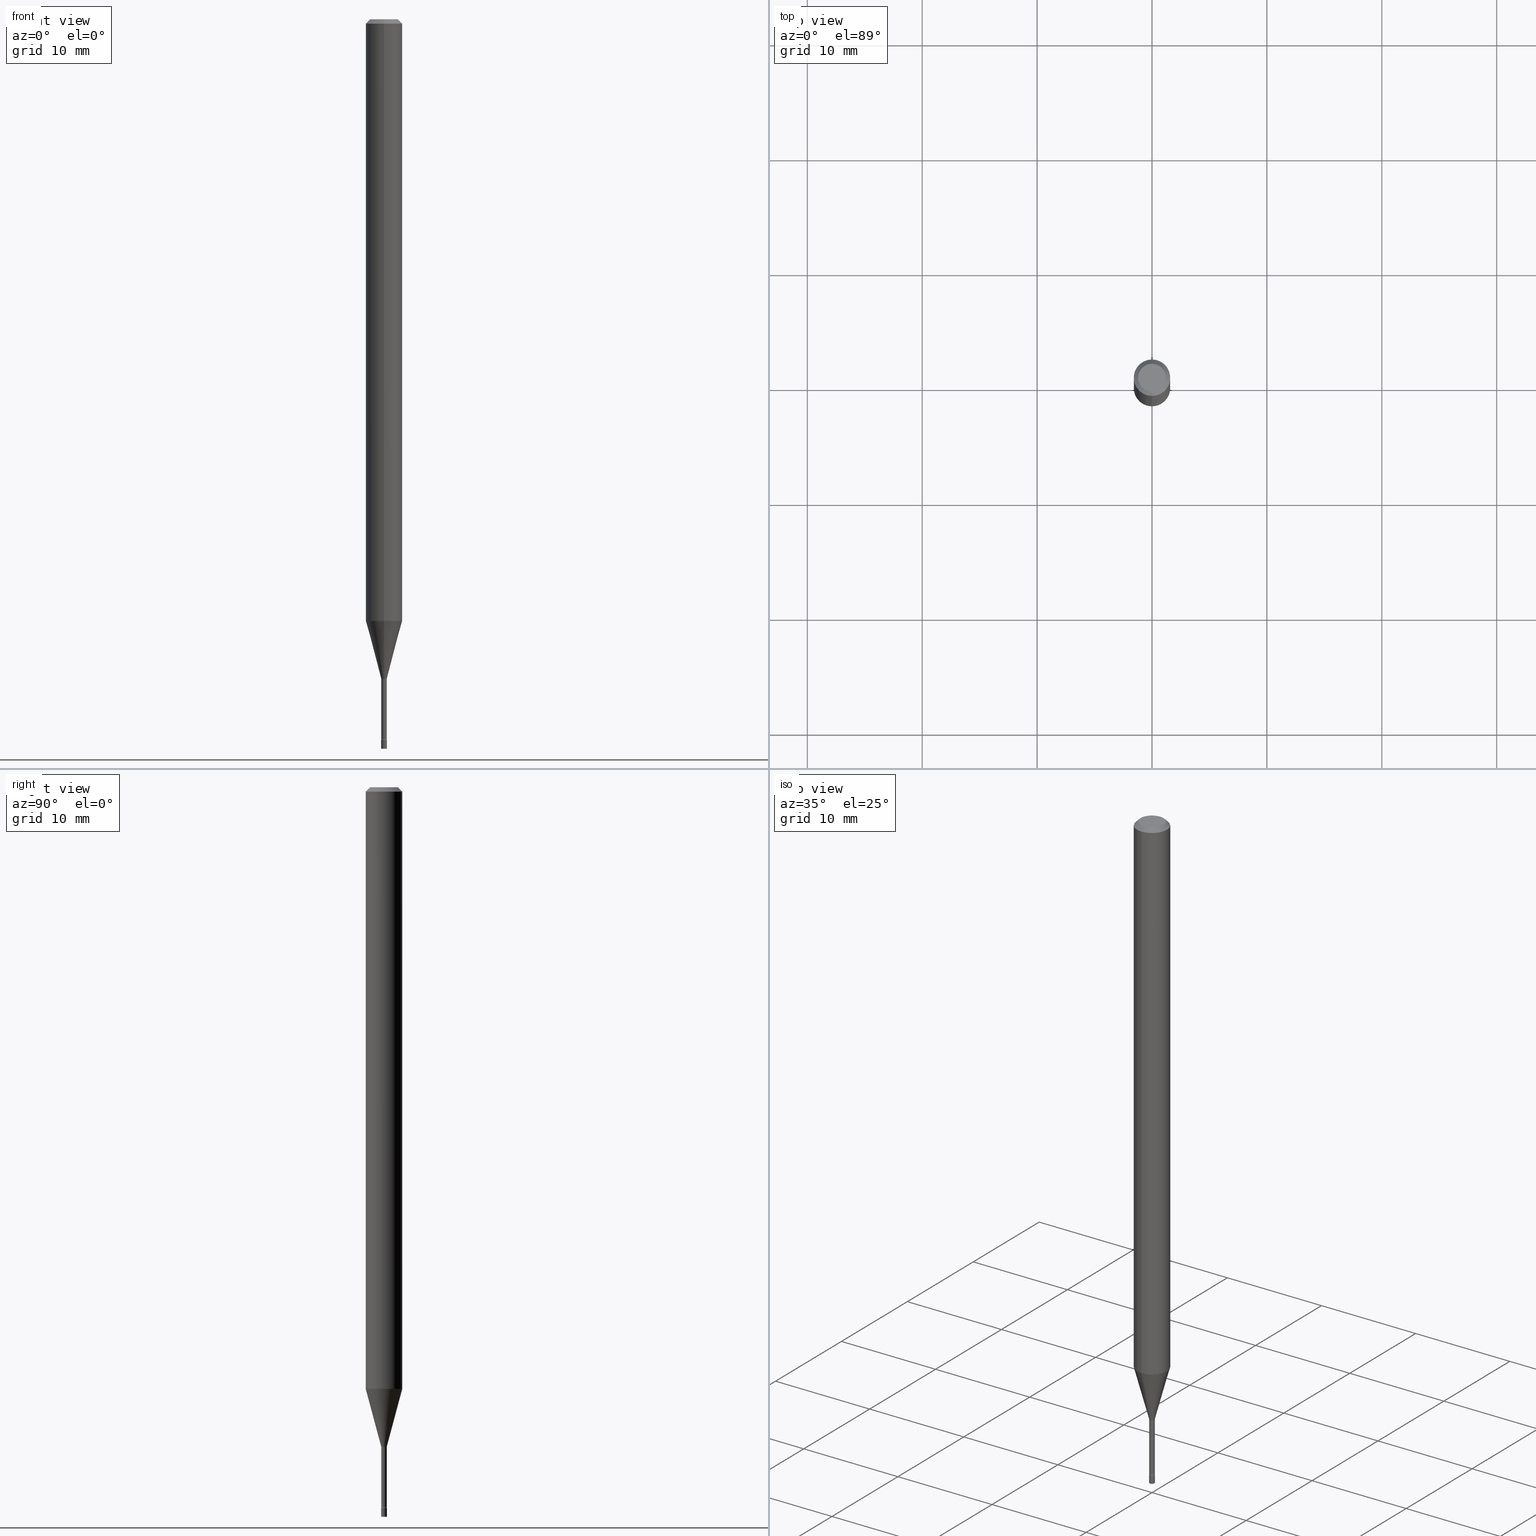
[diagram: canonical four-view strip — front | top / right | iso, engineering-drawing reading convention]
A machine part, canonical four-view strip (front | top / right | iso — engineering-drawing reading convention). The complete STEP part file that produces these views, byte-faithful:
ISO-10303-21;
HEADER;
FILE_DESCRIPTION (( 'STEP AP203' ),
    '1' );
FILE_NAME ('09609.STEP',
    '2024-03-08T23:56:01',
    ( '' ),
    ( '' ),
    'SwSTEP 2.0',
    'SolidWorks 2023',
    '' );
FILE_SCHEMA (( 'CONFIG_CONTROL_DESIGN' ));
ENDSEC;

DATA;
#1 = DIRECTION ( 'NONE',  ( -2.445536542724447659E-29, 3.491384336263527933E-15, 1.000000000000000000 ) ) ;
#2 = ORIENTED_EDGE ( 'NONE', *, *, #313, .T. ) ;
#3 = APPROVAL_STATUS ( 'not_yet_approved' ) ;
#4 = FACE_OUTER_BOUND ( 'NONE', #505, .T. ) ;
#5 = APPROVAL ( #76, 'UNSPECIFIED' ) ;
#6 = ORIENTED_EDGE ( 'NONE', *, *, #480, .F. ) ;
#7 = AXIS2_PLACEMENT_3D ( 'NONE', #10, #62, #307 ) ;
#8 = LINE ( 'NONE', #170, #298 ) ;
#9 = ORIENTED_EDGE ( 'NONE', *, *, #161, .T. ) ;
#10 = CARTESIAN_POINT ( 'NONE',  ( 6.113672015462842613E-29, -8.728703347107864943E-15, -2.500000000000000000 ) ) ;
#11 = DIRECTION ( 'NONE',  ( -6.982962677686265922E-15, -1.000000000000000000, 0.000000000000000000 ) ) ;
#12 = ORIENTED_EDGE ( 'NONE', *, *, #157, .T. ) ;
#13 = DIRECTION ( 'NONE',  ( -2.445536542724447659E-29, 3.491384336263527933E-15, 1.000000000000000000 ) ) ;
#14 = ORIENTED_EDGE ( 'NONE', *, *, #514, .F. ) ;
#15 = EDGE_CURVE ( 'NONE', #107, #69, #314, .T. ) ;
#16 = DIRECTION ( 'NONE',  ( -2.445536542724447659E-29, 3.491384336263527933E-15, 1.000000000000000000 ) ) ;
#17 = CLOSED_SHELL ( 'NONE', ( #516, #255, #425, #306, #452, #124, #61, #435, #205, #189, #315, #414, #40, #496 ) ) ;
#18 = DIRECTION ( 'NONE',  ( 1.000000000000000000, -6.982962677686235945E-15, 0.000000000000000000 ) ) ;
#19 = CARTESIAN_POINT ( 'NONE',  ( 7.105427357607040490E-17, 0.009999999999991376898, -2.470000000000000195 ) ) ;
#20 = AXIS2_PLACEMENT_3D ( 'NONE', #258, #303, #376 ) ;
#21 = APPROVAL_PERSON_ORGANIZATION ( #360, #310, #246 ) ;
#22 = DIRECTION ( 'NONE',  ( 1.000000000000000000, -6.982962677686235945E-15, 0.000000000000000000 ) ) ;
#23 = CARTESIAN_POINT ( 'NONE',  ( 6.040307951277287977E-29, -8.623958906942569995E-15, -2.470000000000000195 ) ) ;
#24 = VERTEX_POINT ( 'NONE', #19 ) ;
#25 = CARTESIAN_POINT ( 'NONE',  ( 6.030204007049943435E-29, -8.609055496358607345E-15, -2.465800000000000214 ) ) ;
#26 = ORIENTED_EDGE ( 'NONE', *, *, #192, .F. ) ;
#27 = EDGE_CURVE ( 'NONE', #415, #126, #54, .T. ) ;
#28 = EDGE_LOOP ( 'NONE', ( #349, #9, #293, #203 ) ) ;
#29 = CLOSED_SHELL ( 'NONE', ( #234, #375, #226, #421 ) ) ;
#30 = AXIS2_PLACEMENT_3D ( 'NONE', #482, #284, #88 ) ;
#31 = PERSON_AND_ORGANIZATION ( #304, #448 ) ;
#32 = PRODUCT_RELATED_PRODUCT_CATEGORY ( 'detail', '', ( #502 ) ) ;
#33 = COORDINATED_UNIVERSAL_TIME_OFFSET ( 5, 0, .BEHIND. ) ;
#34 = DIRECTION ( 'NONE',  ( -2.445536542724447659E-29, 3.491384336263527933E-15, 1.000000000000000000 ) ) ;
#35 = PERSON_AND_ORGANIZATION_ROLE ( 'creator' ) ;
#36 = DIRECTION ( 'NONE',  ( -6.982962677686265133E-15, -1.000000000000000000, 0.000000000000000000 ) ) ;
#37 = ADVANCED_BREP_SHAPE_REPRESENTATION ( '09609', ( #401, #45, #169 ), #109 ) ;
#38 = APPROVAL_DATE_TIME ( #225, #295 ) ;
#39 = DIRECTION ( 'NONE',  ( -6.982962677686266711E-15, -1.000000000000000000, 3.491384336263528328E-15 ) ) ;
#40 = ADVANCED_FACE ( 'NONE', ( #181 ), #387, .T. ) ;
#41 = DIRECTION ( 'NONE',  ( -1.000000000000000000, 6.982962677686265922E-15, -4.883557194083112901E-29 ) ) ;
#42 = CARTESIAN_POINT ( 'NONE',  ( 6.892264536879016655E-17, 0.009399999999991416957, -2.465800000000000214 ) ) ;
#43 = CIRCLE ( 'NONE', #113, 0.04749999999999999362 ) ;
#44 = CIRCLE ( 'NONE', #114, 0.009400000000000024655 ) ;
#45 = MANIFOLD_SOLID_BREP ( 'Body-Move/Copy2[2]', #17 ) ;
#46 = AXIS2_PLACEMENT_3D ( 'NONE', #419, #141, #417 ) ;
#47 = DIRECTION ( 'NONE',  ( 6.982962677686265922E-15, 1.000000000000000000, -3.483106191921935554E-15 ) ) ;
#48 = ORIENTED_EDGE ( 'NONE', *, *, #70, .T. ) ;
#49 = EDGE_CURVE ( 'NONE', #411, #89, #266, .T. ) ;
#50 = CARTESIAN_POINT ( 'NONE',  ( 0.000000000000000000, 0.000000000000000000, 0.000000000000000000 ) ) ;
#51 = ORIENTED_EDGE ( 'NONE', *, *, #70, .F. ) ;
#52 = CARTESIAN_POINT ( 'NONE',  ( 5.522247729972846962E-29, -7.883868790574208180E-15, -2.258092501787273498 ) ) ;
#53 = ORIENTED_EDGE ( 'NONE', *, *, #480, .T. ) ;
#54 = CIRCLE ( 'NONE', #388, 0.04749999999999999362 ) ;
#55 = CYLINDRICAL_SURFACE ( 'NONE', #180, 0.06250000000000000000 ) ;
#56 = CARTESIAN_POINT ( 'NONE',  ( -1.703842893354847853E-16, -0.02440000000000863700, -2.465800000000000214 ) ) ;
#57 = FACE_OUTER_BOUND ( 'NONE', #374, .T. ) ;
#58 = VERTEX_POINT ( 'NONE', #96 ) ;
#59 =( NAMED_UNIT ( * ) PLANE_ANGLE_UNIT ( ) SI_UNIT ( $, .RADIAN. ) );
#60 = DIRECTION ( 'NONE',  ( -2.445536542724447659E-29, 3.491384336263527933E-15, 1.000000000000000000 ) ) ;
#61 = ADVANCED_FACE ( 'NONE', ( #4 ), #361, .T. ) ;
#62 = DIRECTION ( 'NONE',  ( -2.445468806185136597E-29, 3.491481338843145583E-15, 1.000000000000000000 ) ) ;
#63 = DIRECTION ( 'NONE',  ( -4.851104656540964275E-15, -0.7071067811865500152, -0.7071067811865450192 ) ) ;
#64 = ORIENTED_EDGE ( 'NONE', *, *, #383, .T. ) ;
#65 = EDGE_CURVE ( 'NONE', #24, #185, #136, .T. ) ;
#66 = CARTESIAN_POINT ( 'NONE',  ( 5.531588783120004822E-29, -7.897642759363587821E-15, -2.261974787463811420 ) ) ;
#67 = DIRECTION ( 'NONE',  ( -6.982962677686266711E-15, -1.000000000000000000, 3.491384336263528328E-15 ) ) ;
#68 = COORDINATED_UNIVERSAL_TIME_OFFSET ( 5, 0, .BEHIND. ) ;
#69 = VERTEX_POINT ( 'NONE', #399 ) ;
#70 = EDGE_CURVE ( 'NONE', #126, #415, #43, .T. ) ;
#71 = AXIS2_PLACEMENT_3D ( 'NONE', #238, #41, #36 ) ;
#72 = LOCAL_TIME ( 18, 56, 1.000000000000000000, #33 ) ;
#73 = MECHANICAL_CONTEXT ( 'NONE', #353, 'mechanical' ) ;
#74 = DATE_TIME_ROLE ( 'creation_date' ) ;
#75 = FACE_OUTER_BOUND ( 'NONE', #174, .T. ) ;
#76 = APPROVAL_STATUS ( 'not_yet_approved' ) ;
#77 = DIRECTION ( 'NONE',  ( 1.839019923739601104E-15, 0.2588190451025250693, 0.9659258262890670910 ) ) ;
#78 = PRODUCT_DEFINITION_SHAPE ( 'NONE', 'NONE',  #333 ) ;
#79 = CONICAL_SURFACE ( 'NONE', #476, 0.06250000000000000000, 0.7853981633974483900 ) ;
#80 = VECTOR ( 'NONE', #382, 39.37007874015748143 ) ;
#81 = COORDINATED_UNIVERSAL_TIME_OFFSET ( 5, 0, .BEHIND. ) ;
#82 = CALENDAR_DATE ( 2024, 8, 3 ) ;
#83 = DIRECTION ( 'NONE',  ( -2.445468806185136877E-29, 3.491481338843145188E-15, 1.000000000000000000 ) ) ;
#84 = LINE ( 'NONE', #132, #506 ) ;
#85 = AXIS2_PLACEMENT_3D ( 'NONE', #239, #409, #471 ) ;
#86 = COORDINATED_UNIVERSAL_TIME_OFFSET ( 5, 0, .BEHIND. ) ;
#87 = AXIS2_PLACEMENT_3D ( 'NONE', #462, #215, #291 ) ;
#88 = DIRECTION ( 'NONE',  ( -6.982962677686265922E-15, -1.000000000000000000, 3.491384336263527933E-15 ) ) ;
#89 = VERTEX_POINT ( 'NONE', #197 ) ;
#90 = DATE_AND_TIME ( #486, #342 ) ;
#91 = DIRECTION ( 'NONE',  ( -2.445468806185136597E-29, 3.491481338843145583E-15, 1.000000000000000000 ) ) ;
#92 = ORIENTED_EDGE ( 'NONE', *, *, #350, .F. ) ;
#93 = CARTESIAN_POINT ( 'NONE',  ( 5.531588783120004822E-29, -7.897642759363587821E-15, -2.261974787463811420 ) ) ;
#94 = DIRECTION ( 'NONE',  ( -2.445468806185136597E-29, 3.491481338843145583E-15, 1.000000000000000000 ) ) ;
#95 = ORIENTED_EDGE ( 'NONE', *, *, #105, .T. ) ;
#96 = CARTESIAN_POINT ( 'NONE',  ( -6.563984917019076245E-17, -0.009400000000008634088, -2.465800000000000214 ) ) ;
#97 = EDGE_CURVE ( 'NONE', #328, #352, #403, .T. ) ;
#98 = CARTESIAN_POINT ( 'NONE',  ( 0.000000000000000000, 0.000000000000000000, 0.000000000000000000 ) ) ;
#99 = VECTOR ( 'NONE', #379, 39.37007874015748143 ) ;
#100 = CC_DESIGN_APPROVAL ( #295, ( #209 ) ) ;
#101 = VERTEX_POINT ( 'NONE', #233 ) ;
#102 = CARTESIAN_POINT ( 'NONE',  ( 0.000000000000000000, 0.000000000000000000, 0.000000000000000000 ) ) ;
#103 = DIRECTION ( 'NONE',  ( -2.445536542724447659E-29, 3.491384336263527933E-15, 1.000000000000000000 ) ) ;
#104 = VERTEX_POINT ( 'NONE', #393 ) ;
#105 = EDGE_CURVE ( 'NONE', #242, #411, #498, .T. ) ;
#106 = DIRECTION ( 'NONE',  ( -2.445536542724447659E-29, 3.491384336263527933E-15, 1.000000000000000000 ) ) ;
#107 = VERTEX_POINT ( 'NONE', #478 ) ;
#108 = CIRCLE ( 'NONE', #371, 0.009400000000000002104 ) ;
#109 =( GEOMETRIC_REPRESENTATION_CONTEXT ( 3 ) GLOBAL_UNCERTAINTY_ASSIGNED_CONTEXT ( ( #194 ) ) GLOBAL_UNIT_ASSIGNED_CONTEXT ( ( #184, #59, #354 ) ) REPRESENTATION_CONTEXT ( 'NONE', 'WORKASPACE' ) );
#110 = ORIENTED_EDGE ( 'NONE', *, *, #383, .F. ) ;
#111 = COORDINATED_UNIVERSAL_TIME_OFFSET ( 5, 0, .BEHIND. ) ;
#112 = CALENDAR_DATE ( 2024, 8, 3 ) ;
#113 = AXIS2_PLACEMENT_3D ( 'NONE', #252, #302, #39 ) ;
#114 = AXIS2_PLACEMENT_3D ( 'NONE', #172, #144, #453 ) ;
#115 = AXIS2_PLACEMENT_3D ( 'NONE', #93, #106, #334 ) ;
#116 = CARTESIAN_POINT ( 'NONE',  ( 3.840629472727447874E-16, 0.04749999999999999362, -1.947592745229184365E-16 ) ) ;
#117 = CARTESIAN_POINT ( 'NONE',  ( -6.920892941964224504E-17, -0.009911112605671864792, -2.258092501787273498 ) ) ;
#118 = VECTOR ( 'NONE', #175, 39.37007874015748143 ) ;
#119 = AXIS2_PLACEMENT_3D ( 'NONE', #410, #1, #254 ) ;
#120 = APPROVAL_PERSON_ORGANIZATION ( #269, #295, #355 ) ;
#121 = DIRECTION ( 'NONE',  ( -2.445536542724447659E-29, 3.491384336263527933E-15, 1.000000000000000000 ) ) ;
#122 = DATE_AND_TIME ( #82, #461 ) ;
#123 = FACE_OUTER_BOUND ( 'NONE', #214, .T. ) ;
#124 = ADVANCED_FACE ( 'NONE', ( #75 ), #208, .T. ) ;
#125 = PLANE ( 'NONE',  #30 ) ;
#126 = VERTEX_POINT ( 'NONE', #116 ) ;
#127 = DATE_TIME_ROLE ( 'classification_date' ) ;
#128 = AXIS2_PLACEMENT_3D ( 'NONE', #52, #206, #369 ) ;
#129 = CC_DESIGN_SECURITY_CLASSIFICATION ( #264, ( #209 ) ) ;
#130 = DIRECTION ( 'NONE',  ( -2.445536542724447659E-29, 3.491384336263527933E-15, 1.000000000000000000 ) ) ;
#131 = EDGE_LOOP ( 'NONE', ( #384, #259, #289, #464 ) ) ;
#132 = CARTESIAN_POINT ( 'NONE',  ( 6.679101716144950638E-17, 0.009400000000000012512, -3.281901276087720893E-17 ) ) ;
#133 = VERTEX_POINT ( 'NONE', #274 ) ;
#134 = CARTESIAN_POINT ( 'NONE',  ( 0.000000000000000000, 0.000000000000000000, 0.000000000000000000 ) ) ;
#135 = ORIENTED_EDGE ( 'NONE', *, *, #192, .T. ) ;
#136 = CIRCLE ( 'NONE', #85, 0.01000000000000000021 ) ;
#137 = CARTESIAN_POINT ( 'NONE',  ( 3.668304814086678845E-31, -5.237076504395302352E-17, -0.01500000000000003067 ) ) ;
#138 = CIRCLE ( 'NONE', #433, 0.06250000000000000000 ) ;
#139 = CIRCLE ( 'NONE', #231, 0.01000000000000000021 ) ;
#140 = EDGE_LOOP ( 'NONE', ( #474, #408, #167, #332 ) ) ;
#141 = DIRECTION ( 'NONE',  ( -2.445536542724447659E-29, 3.491384336263527933E-15, 1.000000000000000000 ) ) ;
#142 = ORIENTED_EDGE ( 'NONE', *, *, #49, .F. ) ;
#143 = EDGE_CURVE ( 'NONE', #107, #451, #446, .T. ) ;
#144 = DIRECTION ( 'NONE',  ( -2.445536542724447659E-29, 3.491384336263527933E-15, 1.000000000000000000 ) ) ;
#145 = ORIENTED_EDGE ( 'NONE', *, *, #27, .F. ) ;
#146 = PERSON_AND_ORGANIZATION ( #304, #448 ) ;
#147 = VECTOR ( 'NONE', #472, 39.37007874015748143 ) ;
#148 = DIRECTION ( 'NONE',  ( -2.445536542724447659E-29, 3.491384336263527933E-15, 1.000000000000000000 ) ) ;
#149 = ORIENTED_EDGE ( 'NONE', *, *, #347, .T. ) ;
#150 = CIRCLE ( 'NONE', #278, 0.01500000000000000638 ) ;
#151 = APPROVAL_PERSON_ORGANIZATION ( #190, #5, #359 ) ;
#152 = ORIENTED_EDGE ( 'NONE', *, *, #347, .F. ) ;
#153 = DIRECTION ( 'NONE',  ( 7.105427357600999492E-15, 1.000000000000000000, 0.000000000000000000 ) ) ;
#154 = CIRCLE ( 'NONE', #7, 0.01000000000000000021 ) ;
#155 = CC_DESIGN_APPROVAL ( #310, ( #264 ) ) ;
#156 = PERSON_AND_ORGANIZATION ( #304, #448 ) ;
#157 = EDGE_CURVE ( 'NONE', #183, #101, #424, .T. ) ;
#158 = DIRECTION ( 'NONE',  ( 2.445536542724447098E-29, -3.491384336263527933E-15, -1.000000000000000000 ) ) ;
#159 = CC_DESIGN_DATE_AND_TIME_ASSIGNMENT ( #228, #74, ( #333 ) ) ;
#160 = VECTOR ( 'NONE', #77, 39.37007874015748143 ) ;
#161 = EDGE_CURVE ( 'NONE', #301, #24, #150, .T. ) ;
#162 = CYLINDRICAL_SURFACE ( 'NONE', #237, 0.01000000000000000021 ) ;
#163 = CARTESIAN_POINT ( 'NONE',  ( -4.364351673553412809E-16, -0.06250000000000720257, -2.061828102118093309 ) ) ;
#164 = EDGE_LOOP ( 'NONE', ( #187, #469, #248, #503 ) ) ;
#165 = CARTESIAN_POINT ( 'NONE',  ( 5.522247729972846962E-29, -7.883868790574208180E-15, -2.258092501787273498 ) ) ;
#166 = CARTESIAN_POINT ( 'NONE',  ( -6.920892941964224504E-17, -0.009911112605671864792, -2.258092501787273498 ) ) ;
#167 = ORIENTED_EDGE ( 'NONE', *, *, #198, .T. ) ;
#168 = TOROIDAL_SURFACE ( 'NONE', #46, 0.02440000000000002583, 0.01500000000000000291 ) ;
#169 = AXIS2_PLACEMENT_3D ( 'NONE', #317, #186, #477 ) ;
#170 = CARTESIAN_POINT ( 'NONE',  ( 0.01000000000000000021, -6.982962677686265724E-17, 4.876176775795935968E-31 ) ) ;
#171 = ORIENTED_EDGE ( 'NONE', *, *, #65, .F. ) ;
#172 = CARTESIAN_POINT ( 'NONE',  ( 6.030204007049943435E-29, -8.609055496358607345E-15, -2.465800000000000214 ) ) ;
#173 = FACE_OUTER_BOUND ( 'NONE', #297, .T. ) ;
#174 = EDGE_LOOP ( 'NONE', ( #251, #135, #377, #177 ) ) ;
#175 = DIRECTION ( 'NONE',  ( -2.445536542724447659E-29, 3.491384336263527933E-15, 1.000000000000000000 ) ) ;
#176 = FACE_OUTER_BOUND ( 'NONE', #380, .T. ) ;
#177 = ORIENTED_EDGE ( 'NONE', *, *, #245, .F. ) ;
#178 = AXIS2_PLACEMENT_3D ( 'NONE', #391, #34, #199 ) ;
#179 = FACE_OUTER_BOUND ( 'NONE', #28, .T. ) ;
#180 = AXIS2_PLACEMENT_3D ( 'NONE', #134, #13, #412 ) ;
#181 = FACE_OUTER_BOUND ( 'NONE', #164, .T. ) ;
#182 = DIRECTION ( 'NONE',  ( -2.445536542724447659E-29, 3.491384336263527933E-15, 1.000000000000000000 ) ) ;
#183 = VERTEX_POINT ( 'NONE', #117 ) ;
#184 =( CONVERSION_BASED_UNIT ( 'INCH', #294 ) LENGTH_UNIT ( ) NAMED_UNIT ( #280 ) );
#185 = VERTEX_POINT ( 'NONE', #235 ) ;
#186 = DIRECTION ( 'NONE',  ( 0.000000000000000000, 0.000000000000000000, 1.000000000000000000 ) ) ;
#187 = ORIENTED_EDGE ( 'NONE', *, *, #211, .F. ) ;
#188 = CIRCLE ( 'NONE', #363, 0.01499999999999999771 ) ;
#189 = ADVANCED_FACE ( 'NONE', ( #230 ), #195, .F. ) ;
#190 = PERSON_AND_ORGANIZATION ( #304, #448 ) ;
#191 = CALENDAR_DATE ( 2024, 8, 3 ) ;
#192 = EDGE_CURVE ( 'NONE', #328, #411, #275, .T. ) ;
#193 = APPROVAL_DATE_TIME ( #436, #5 ) ;
#194 = UNCERTAINTY_MEASURE_WITH_UNIT (LENGTH_MEASURE( 1.000000000000000082E-05 ), #184, 'distance_accuracy_value', 'NONE');
#195 = PLANE ( 'NONE',  #487 ) ;
#196 = AXIS2_PLACEMENT_3D ( 'NONE', #277, #320, #398 ) ;
#197 = CARTESIAN_POINT ( 'NONE',  ( 4.440892098501133005E-16, 0.06249999999999995143, -0.01500000000000024751 ) ) ;
#198 = EDGE_CURVE ( 'NONE', #352, #101, #340, .T. ) ;
#199 = DIRECTION ( 'NONE',  ( -6.982962677686265922E-15, -1.000000000000000000, 4.370956789862821150E-15 ) ) ;
#200 = CARTESIAN_POINT ( 'NONE',  ( -4.287811248607203282E-16, -0.06250000000000005551, -0.01499999999999981209 ) ) ;
#201 = AXIS2_PLACEMENT_3D ( 'NONE', #273, #510, #153 ) ;
#202 = FACE_OUTER_BOUND ( 'NONE', #227, .T. ) ;
#203 = ORIENTED_EDGE ( 'NONE', *, *, #290, .F. ) ;
#204 = DIRECTION ( 'NONE',  ( 1.000000000000000000, -6.982962677686265922E-15, 4.876176775795935793E-29 ) ) ;
#205 = ADVANCED_FACE ( 'NONE', ( #123 ), #79, .T. ) ;
#206 = DIRECTION ( 'NONE',  ( -2.445536542724447659E-29, 3.491384336263527933E-15, 1.000000000000000000 ) ) ;
#207 = ORIENTED_EDGE ( 'NONE', *, *, #511, .T. ) ;
#208 = CONICAL_SURFACE ( 'NONE', #196, 0.009911112605663982209, 0.2617993877991502960 ) ;
#209 = PRODUCT_DEFINITION_FORMATION_WITH_SPECIFIED_SOURCE ( 'ANY', '', #502, .NOT_KNOWN. ) ;
#210 = DIRECTION ( 'NONE',  ( -1.000000000000000000, 6.982962677686265922E-15, -4.883557194083112901E-29 ) ) ;
#211 = EDGE_CURVE ( 'NONE', #301, #352, #84, .T. ) ;
#212 = DIRECTION ( 'NONE',  ( -2.445536542724447659E-29, 3.491384336263527933E-15, 1.000000000000000000 ) ) ;
#213 = CARTESIAN_POINT ( 'NONE',  ( 4.440892098501128074E-16, 0.06249999999999279743, -2.061828102118093753 ) ) ;
#214 = EDGE_LOOP ( 'NONE', ( #418, #51, #149, #207 ) ) ;
#215 = DIRECTION ( 'NONE',  ( -2.445536542724447659E-29, 3.491384336263527933E-15, 1.000000000000000000 ) ) ;
#216 = DIRECTION ( 'NONE',  ( -2.445468806185136597E-29, 3.491481338843145583E-15, 1.000000000000000000 ) ) ;
#217 = EDGE_LOOP ( 'NONE', ( #458, #366 ) ) ;
#218 = VECTOR ( 'NONE', #488, 39.37007874015748143 ) ;
#219 = FACE_OUTER_BOUND ( 'NONE', #493, .T. ) ;
#220 = TOROIDAL_SURFACE ( 'NONE', #115, 0.02439999999999999808, 0.01500000000000002200 ) ;
#221 = ORIENTED_EDGE ( 'NONE', *, *, #283, .F. ) ;
#222 = DIRECTION ( 'NONE',  ( -6.982962677686265922E-15, -1.000000000000000000, 3.491384336263527933E-15 ) ) ;
#223 = DIRECTION ( 'NONE',  ( -6.982962677686265922E-15, -1.000000000000000000, 4.370956789862821150E-15 ) ) ;
#224 = ORIENTED_EDGE ( 'NONE', *, *, #143, .F. ) ;
#225 = DATE_AND_TIME ( #394, #364 ) ;
#226 = ADVANCED_FACE ( 'NONE', ( #362 ), #282, .T. ) ;
#227 = EDGE_LOOP ( 'NONE', ( #346, #344, #449, #262 ) ) ;
#228 = DATE_AND_TIME ( #191, #72 ) ;
#229 = AXIS2_PLACEMENT_3D ( 'NONE', #292, #454, #413 ) ;
#230 = FACE_OUTER_BOUND ( 'NONE', #497, .T. ) ;
#231 = AXIS2_PLACEMENT_3D ( 'NONE', #465, #348, #22 ) ;
#232 = APPLICATION_PROTOCOL_DEFINITION ( 'international standard', 'config_control_design', 1994, #460 ) ;
#233 = CARTESIAN_POINT ( 'NONE',  ( -6.563984917019559422E-17, -0.009400000000007898565, -2.261974787463811420 ) ) ;
#234 = ADVANCED_FACE ( 'NONE', ( #520 ), #162, .T. ) ;
#235 = CARTESIAN_POINT ( 'NONE',  ( -6.982962677680226008E-17, -0.01000000000000862178, -2.470000000000000195 ) ) ;
#236 = APPROVAL_STATUS ( 'not_yet_approved' ) ;
#237 = AXIS2_PLACEMENT_3D ( 'NONE', #323, #91, #241 ) ;
#238 = CARTESIAN_POINT ( 'NONE',  ( -1.703842893354895431E-16, -0.02440000000000789454, -2.261974787463811420 ) ) ;
#239 = CARTESIAN_POINT ( 'NONE',  ( 6.040475260529386236E-29, -8.623719310570914180E-15, -2.470000000000000195 ) ) ;
#240 = DIRECTION ( 'NONE',  ( -2.445536542724447659E-29, 3.491384336263527933E-15, 1.000000000000000000 ) ) ;
#241 = DIRECTION ( 'NONE',  ( 1.000000000000000000, -6.982962677686265922E-15, 4.876176775795935793E-29 ) ) ;
#242 = VERTEX_POINT ( 'NONE', #163 ) ;
#243 = CIRCLE ( 'NONE', #272, 0.009400000000000024655 ) ;
#244 = FACE_OUTER_BOUND ( 'NONE', #131, .T. ) ;
#245 = EDGE_CURVE ( 'NONE', #183, #242, #250, .T. ) ;
#246 = APPROVAL_ROLE ( '' ) ;
#247 = LINE ( 'NONE', #407, #316 ) ;
#248 = ORIENTED_EDGE ( 'NONE', *, *, #321, .T. ) ;
#249 = EDGE_CURVE ( 'NONE', #133, #89, #518, .T. ) ;
#250 = LINE ( 'NONE', #166, #218 ) ;
#251 = ORIENTED_EDGE ( 'NONE', *, *, #514, .T. ) ;
#252 = CARTESIAN_POINT ( 'NONE',  ( 7.072129387646011672E-46, -1.009656626948158031E-31, -2.891851855040085948E-17 ) ) ;
#253 =( LENGTH_UNIT ( ) NAMED_UNIT ( * ) SI_UNIT ( $, .METRE. ) );
#254 = DIRECTION ( 'NONE',  ( -6.982962677686265922E-15, -1.000000000000000000, 3.491384336263528328E-15 ) ) ;
#255 = ADVANCED_FACE ( 'NONE', ( #202 ), #483, .T. ) ;
#256 = ORIENTED_EDGE ( 'NONE', *, *, #97, .F. ) ;
#257 = AXIS2_PLACEMENT_3D ( 'NONE', #492, #405, #441 ) ;
#258 = CARTESIAN_POINT ( 'NONE',  ( 6.982962677692379396E-17, 0.009999999999991271080, -2.500000000000000000 ) ) ;
#259 = ORIENTED_EDGE ( 'NONE', *, *, #392, .F. ) ;
#260 = ORIENTED_EDGE ( 'NONE', *, *, #443, .T. ) ;
#261 = CARTESIAN_POINT ( 'NONE',  ( 5.522247729972846962E-29, -7.883868790574208180E-15, -2.258092501787273498 ) ) ;
#262 = ORIENTED_EDGE ( 'NONE', *, *, #321, .F. ) ;
#263 = FACE_OUTER_BOUND ( 'NONE', #490, .T. ) ;
#264 = SECURITY_CLASSIFICATION ( '', '', #430 ) ;
#265 = DIRECTION ( 'NONE',  ( 1.000000000000000000, -6.982962677686265922E-15, 4.876176775795935793E-29 ) ) ;
#266 = LINE ( 'NONE', #427, #118 ) ;
#267 = PERSON_AND_ORGANIZATION_ROLE ( 'design_owner' ) ;
#268 = EDGE_LOOP ( 'NONE', ( #145, #485, #423, #152 ) ) ;
#269 = PERSON_AND_ORGANIZATION ( #304, #448 ) ;
#270 = CARTESIAN_POINT ( 'NONE',  ( 6.113672015462842613E-29, -8.728703347107864943E-15, -2.500000000000000000 ) ) ;
#271 = AXIS2_PLACEMENT_3D ( 'NONE', #23, #468, #265 ) ;
#272 = AXIS2_PLACEMENT_3D ( 'NONE', #25, #148, #457 ) ;
#273 = CARTESIAN_POINT ( 'NONE',  ( 1.733724275255197259E-16, 0.02439999999999210162, -2.261974787463811420 ) ) ;
#274 = CARTESIAN_POINT ( 'NONE',  ( -4.364351673553912750E-16, -0.06250000000000005551, -0.01499999999999981209 ) ) ;
#275 = LINE ( 'NONE', #439, #160 ) ;
#276 = SHAPE_DEFINITION_REPRESENTATION ( #78, #37 ) ;
#277 = CARTESIAN_POINT ( 'NONE',  ( 5.522247729972846962E-29, -7.883868790574208180E-15, -2.258092501787273498 ) ) ;
#278 = AXIS2_PLACEMENT_3D ( 'NONE', #515, #432, #437 ) ;
#279 = EDGE_CURVE ( 'NONE', #328, #183, #416, .T. ) ;
#280 = DIMENSIONAL_EXPONENTS ( 1.000000000000000000, 0.000000000000000000, 0.000000000000000000, 0.000000000000000000, 0.000000000000000000, 0.000000000000000000, 0.000000000000000000 ) ;
#281 = CARTESIAN_POINT ( 'NONE',  ( 2.572559502513586973E-16, 0.009911112605656097890, -2.258092501787273498 ) ) ;
#282 = CYLINDRICAL_SURFACE ( 'NONE', #356, 0.01000000000000000021 ) ;
#283 = EDGE_CURVE ( 'NONE', #451, #104, #8, .T. ) ;
#284 = DIRECTION ( 'NONE',  ( -2.445536542724447098E-29, 3.491384336263527933E-15, 1.000000000000000000 ) ) ;
#285 = ORIENTED_EDGE ( 'NONE', *, *, #27, .T. ) ;
#286 = AXIS2_PLACEMENT_3D ( 'NONE', #373, #240, #11 ) ;
#287 = AXIS2_PLACEMENT_3D ( 'NONE', #261, #182, #456 ) ;
#288 = DIRECTION ( 'NONE',  ( -2.445536542724447659E-29, 3.491384336263527933E-15, 1.000000000000000000 ) ) ;
#289 = ORIENTED_EDGE ( 'NONE', *, *, #290, .T. ) ;
#290 = EDGE_CURVE ( 'NONE', #58, #185, #188, .T. ) ;
#291 = DIRECTION ( 'NONE',  ( -6.982962677686265922E-15, -1.000000000000000000, 3.491384336263527933E-15 ) ) ;
#292 = CARTESIAN_POINT ( 'NONE',  ( 5.531742001464116485E-29, -7.897423341974173165E-15, -2.261974787463811420 ) ) ;
#293 = ORIENTED_EDGE ( 'NONE', *, *, #65, .T. ) ;
#294 = LENGTH_MEASURE_WITH_UNIT ( LENGTH_MEASURE( 0.02539999999999999897 ), #253 );
#295 = APPROVAL ( #236, 'UNSPECIFIED' ) ;
#296 = LINE ( 'NONE', #338, #99 ) ;
#297 = EDGE_LOOP ( 'NONE', ( #339, #171 ) ) ;
#298 = VECTOR ( 'NONE', #83, 39.37007874015748143 ) ;
#299 = AXIS2_PLACEMENT_3D ( 'NONE', #137, #103, #467 ) ;
#300 = CYLINDRICAL_SURFACE ( 'NONE', #470, 0.06250000000000000000 ) ;
#301 = VERTEX_POINT ( 'NONE', #42 ) ;
#302 = DIRECTION ( 'NONE',  ( -2.445536542724447659E-29, 3.491384336263527933E-15, 1.000000000000000000 ) ) ;
#303 = DIRECTION ( 'NONE',  ( 2.438088387897960049E-29, -3.491481338843145188E-15, -1.000000000000000000 ) ) ;
#304 = PERSON ( 'UNSPECIFIED', 'UNSPECIFIED', 'UNSPECIFIED', ('UNSPECIFIED'), ('UNSPECIFIED'), ('UNSPECIFIED') ) ;
#305 = DIRECTION ( 'NONE',  ( -6.982962677686265922E-15, -1.000000000000000000, 3.491384336263528328E-15 ) ) ;
#306 = ADVANCED_FACE ( 'NONE', ( #331 ), #329, .T. ) ;
#307 = DIRECTION ( 'NONE',  ( 1.000000000000000000, -6.982962677686235945E-15, 0.000000000000000000 ) ) ;
#308 = ORIENTED_EDGE ( 'NONE', *, *, #511, .F. ) ;
#309 = EDGE_CURVE ( 'NONE', #185, #24, #481, .T. ) ;
#310 = APPROVAL ( #3, 'UNSPECIFIED' ) ;
#311 = ORIENTED_EDGE ( 'NONE', *, *, #283, .T. ) ;
#312 = PERSON_AND_ORGANIZATION_ROLE ( 'creator' ) ;
#313 = EDGE_CURVE ( 'NONE', #101, #352, #108, .T. ) ;
#314 = LINE ( 'NONE', #420, #147 ) ;
#315 = ADVANCED_FACE ( 'NONE', ( #173 ), #125, .F. ) ;
#316 = VECTOR ( 'NONE', #121, 39.37007874015748143 ) ;
#317 = CARTESIAN_POINT ( 'NONE',  ( 0.000000000000000000, 0.000000000000000000, 0.000000000000000000 ) ) ;
#318 = DESIGN_CONTEXT ( 'detailed design', #460, 'design' ) ;
#319 = DIRECTION ( 'NONE',  ( 6.982962677686265922E-15, 1.000000000000000000, -3.491384336263527933E-15 ) ) ;
#320 = DIRECTION ( 'NONE',  ( -2.445536542724447659E-29, 3.491384336263527933E-15, 1.000000000000000000 ) ) ;
#321 = EDGE_CURVE ( 'NONE', #58, #101, #247, .T. ) ;
#322 = VECTOR ( 'NONE', #63, 39.37007874015748143 ) ;
#323 = CARTESIAN_POINT ( 'NONE',  ( 0.000000000000000000, 0.000000000000000000, 0.000000000000000000 ) ) ;
#324 = DIRECTION ( 'NONE',  ( -2.445536542724447659E-29, 3.491384336263527933E-15, 1.000000000000000000 ) ) ;
#325 = CC_DESIGN_PERSON_AND_ORGANIZATION_ASSIGNMENT ( #156, #473, ( #209 ) ) ;
#326 = ORIENTED_EDGE ( 'NONE', *, *, #143, .T. ) ;
#327 = DIRECTION ( 'NONE',  ( 2.445536542724447659E-29, -3.491384336263527933E-15, -1.000000000000000000 ) ) ;
#328 = VERTEX_POINT ( 'NONE', #281 ) ;
#329 = CONICAL_SURFACE ( 'NONE', #257, 0.06250000000000000000, 0.7853981633974483900 ) ;
#330 = DIRECTION ( 'NONE',  ( -2.445536542724447659E-29, 3.491384336263527933E-15, 1.000000000000000000 ) ) ;
#331 = FACE_OUTER_BOUND ( 'NONE', #268, .T. ) ;
#332 = ORIENTED_EDGE ( 'NONE', *, *, #157, .F. ) ;
#333 = PRODUCT_DEFINITION ( 'UNKNOWN', '', #209, #318 ) ;
#334 = DIRECTION ( 'NONE',  ( -6.982962677686265922E-15, -1.000000000000000000, 3.491384336263527933E-15 ) ) ;
#335 = DIRECTION ( 'NONE',  ( -2.445536542724447659E-29, 3.491384336263527933E-15, 1.000000000000000000 ) ) ;
#336 = ORIENTED_EDGE ( 'NONE', *, *, #49, .T. ) ;
#337 = EDGE_CURVE ( 'NONE', #415, #133, #402, .T. ) ;
#338 = CARTESIAN_POINT ( 'NONE',  ( 4.364351673553919652E-16, 0.06249999999999995143, -0.01500000000000024751 ) ) ;
#339 = ORIENTED_EDGE ( 'NONE', *, *, #309, .F. ) ;
#340 = CIRCLE ( 'NONE', #229, 0.009400000000000002104 ) ;
#341 = AXIS2_PLACEMENT_3D ( 'NONE', #66, #16, #222 ) ;
#342 = LOCAL_TIME ( 18, 56, 1.000000000000000000, #81 ) ;
#343 = LINE ( 'NONE', #345, #80 ) ;
#344 = ORIENTED_EDGE ( 'NONE', *, *, #211, .T. ) ;
#345 = CARTESIAN_POINT ( 'NONE',  ( -4.364351673553916201E-16, -0.06250000000000000000, 2.182115210164704958E-16 ) ) ;
#346 = ORIENTED_EDGE ( 'NONE', *, *, #392, .T. ) ;
#347 = EDGE_CURVE ( 'NONE', #126, #89, #296, .T. ) ;
#348 = DIRECTION ( 'NONE',  ( -2.445468806185136597E-29, 3.491481338843145583E-15, 1.000000000000000000 ) ) ;
#349 = ORIENTED_EDGE ( 'NONE', *, *, #431, .F. ) ;
#350 = EDGE_CURVE ( 'NONE', #104, #69, #389, .T. ) ;
#351 = APPLICATION_PROTOCOL_DEFINITION ( 'international standard', 'config_control_design', 1994, #353 ) ;
#352 = VERTEX_POINT ( 'NONE', #500 ) ;
#353 = APPLICATION_CONTEXT ( 'configuration controlled 3d designs of mechanical parts and assemblies' ) ;
#354 =( NAMED_UNIT ( * ) SI_UNIT ( $, .STERADIAN. ) SOLID_ANGLE_UNIT ( ) );
#355 = APPROVAL_ROLE ( '' ) ;
#356 = AXIS2_PLACEMENT_3D ( 'NONE', #50, #94, #204 ) ;
#357 = LOCAL_TIME ( 18, 56, 1.000000000000000000, #68 ) ;
#358 = CARTESIAN_POINT ( 'NONE',  ( 3.316907271900976096E-16, 0.04749999999999999362, -1.803000152477179914E-16 ) ) ;
#359 = APPROVAL_ROLE ( '' ) ;
#360 = PERSON_AND_ORGANIZATION ( #304, #448 ) ;
#361 = CONICAL_SURFACE ( 'NONE', #381, 0.009911112605663982209, 0.2617993877991502960 ) ;
#362 = FACE_OUTER_BOUND ( 'NONE', #370, .T. ) ;
#363 = AXIS2_PLACEMENT_3D ( 'NONE', #56, #210, #447 ) ;
#364 = LOCAL_TIME ( 18, 56, 1.000000000000000000, #111 ) ;
#365 = CARTESIAN_POINT ( 'NONE',  ( 5.531742001464116485E-29, -7.897423341974173165E-15, -2.261974787463811420 ) ) ;
#366 = ORIENTED_EDGE ( 'NONE', *, *, #507, .T. ) ;
#367 = CARTESIAN_POINT ( 'NONE',  ( 3.668304814086678845E-31, -5.237076504395302352E-17, -0.01500000000000003067 ) ) ;
#368 = ORIENTED_EDGE ( 'NONE', *, *, #279, .T. ) ;
#369 = DIRECTION ( 'NONE',  ( -6.982962677686264344E-15, -1.000000000000000000, 0.000000000000000000 ) ) ;
#370 = EDGE_LOOP ( 'NONE', ( #406, #326, #311, #455 ) ) ;
#371 = AXIS2_PLACEMENT_3D ( 'NONE', #365, #324, #484 ) ;
#372 = DIRECTION ( 'NONE',  ( -6.982962677686265922E-15, -1.000000000000000000, 3.491384336263527933E-15 ) ) ;
#373 = CARTESIAN_POINT ( 'NONE',  ( 6.040475260529386236E-29, -8.623719310570914180E-15, -2.470000000000000195 ) ) ;
#374 = EDGE_LOOP ( 'NONE', ( #466, #224 ) ) ;
#375 = ADVANCED_FACE ( 'NONE', ( #504 ), #386, .T. ) ;
#376 = DIRECTION ( 'NONE',  ( -1.000000000000000000, 6.982962677686265922E-15, -4.876176775795935793E-29 ) ) ;
#377 = ORIENTED_EDGE ( 'NONE', *, *, #105, .F. ) ;
#378 = PLANE ( 'NONE',  #20 ) ;
#379 = DIRECTION ( 'NONE',  ( 4.937700262164548042E-15, 0.7071067811865451302, -0.7071067811865499042 ) ) ;
#380 = EDGE_LOOP ( 'NONE', ( #256, #14, #12, #2 ) ) ;
#381 = AXIS2_PLACEMENT_3D ( 'NONE', #165, #330, #491 ) ;
#382 = DIRECTION ( 'NONE',  ( -2.445536542724447659E-29, 3.491384336263527933E-15, 1.000000000000000000 ) ) ;
#383 = EDGE_CURVE ( 'NONE', #411, #242, #138, .T. ) ;
#384 = ORIENTED_EDGE ( 'NONE', *, *, #161, .F. ) ;
#385 = ORIENTED_EDGE ( 'NONE', *, *, #245, .T. ) ;
#386 = PLANE ( 'NONE',  #271 ) ;
#387 = CYLINDRICAL_SURFACE ( 'NONE', #517, 0.009400000000000012512 ) ;
#388 = AXIS2_PLACEMENT_3D ( 'NONE', #508, #429, #67 ) ;
#389 = CIRCLE ( 'NONE', #395, 0.01000000000000000021 ) ;
#390 = PERSON_AND_ORGANIZATION ( #304, #448 ) ;
#391 = CARTESIAN_POINT ( 'NONE',  ( 5.042275968545992406E-29, -7.198634339803070336E-15, -2.061828102118093753 ) ) ;
#392 = EDGE_CURVE ( 'NONE', #58, #301, #243, .T. ) ;
#393 = CARTESIAN_POINT ( 'NONE',  ( 0.01000000000000000021, -8.693788533719433294E-15, -2.470000000000000195 ) ) ;
#394 = CALENDAR_DATE ( 2024, 8, 3 ) ;
#395 = AXIS2_PLACEMENT_3D ( 'NONE', #463, #216, #18 ) ;
#396 = CC_DESIGN_PERSON_AND_ORGANIZATION_ASSIGNMENT ( #390, #509, ( #264 ) ) ;
#397 = CIRCLE ( 'NONE', #299, 0.06250000000000000000 ) ;
#398 = DIRECTION ( 'NONE',  ( -6.982962677686264344E-15, -1.000000000000000000, 0.000000000000000000 ) ) ;
#399 = CARTESIAN_POINT ( 'NONE',  ( -0.01000000000000000021, -8.605276853449206598E-15, -2.470000000000000195 ) ) ;
#400 = APPROVAL_DATE_TIME ( #90, #310 ) ;
#401 = MANIFOLD_SOLID_BREP ( 'Body-Move/Copy2[1]', #29 ) ;
#402 = LINE ( 'NONE', #200, #322 ) ;
#403 = CIRCLE ( 'NONE', #201, 0.01500000000000002373 ) ;
#404 = AXIS2_PLACEMENT_3D ( 'NONE', #367, #288, #450 ) ;
#405 = DIRECTION ( 'NONE',  ( 2.445536542724447659E-29, -3.491384336263527933E-15, -1.000000000000000000 ) ) ;
#406 = ORIENTED_EDGE ( 'NONE', *, *, #15, .F. ) ;
#407 = CARTESIAN_POINT ( 'NONE',  ( -6.563984917025098705E-17, -0.009400000000000012512, 3.281901276087720893E-17 ) ) ;
#408 = ORIENTED_EDGE ( 'NONE', *, *, #97, .T. ) ;
#409 = DIRECTION ( 'NONE',  ( -2.445536542724447659E-29, 3.491384336263527933E-15, 1.000000000000000000 ) ) ;
#410 = CARTESIAN_POINT ( 'NONE',  ( 0.000000000000000000, 0.000000000000000000, 0.000000000000000000 ) ) ;
#411 = VERTEX_POINT ( 'NONE', #213 ) ;
#412 = DIRECTION ( 'NONE',  ( -6.982962677686265922E-15, -1.000000000000000000, 3.491384336263527933E-15 ) ) ;
#413 = DIRECTION ( 'NONE',  ( -6.982962677686265922E-15, -1.000000000000000000, 0.000000000000000000 ) ) ;
#414 = ADVANCED_FACE ( 'NONE', ( #244 ), #168, .F. ) ;
#415 = VERTEX_POINT ( 'NONE', #499 ) ;
#416 = CIRCLE ( 'NONE', #128, 0.009911112605663982209 ) ;
#417 = DIRECTION ( 'NONE',  ( -6.982962677686265922E-15, -1.000000000000000000, 3.491384336263527933E-15 ) ) ;
#418 = ORIENTED_EDGE ( 'NONE', *, *, #337, .F. ) ;
#419 = CARTESIAN_POINT ( 'NONE',  ( 6.030036982291310238E-29, -8.609294685319429365E-15, -2.465800000000000214 ) ) ;
#420 = CARTESIAN_POINT ( 'NONE',  ( -0.01000000000000000021, 7.105427357601002007E-17, -4.918935090254906272E-31 ) ) ;
#421 = ADVANCED_FACE ( 'NONE', ( #57 ), #378, .T. ) ;
#422 = FACE_OUTER_BOUND ( 'NONE', #140, .T. ) ;
#423 = ORIENTED_EDGE ( 'NONE', *, *, #249, .T. ) ;
#424 = CIRCLE ( 'NONE', #71, 0.01500000000000002373 ) ;
#425 = ADVANCED_FACE ( 'NONE', ( #179 ), #512, .F. ) ;
#426 = CARTESIAN_POINT ( 'NONE',  ( 5.042275968545992406E-29, -7.198634339803070336E-15, -2.061828102118093753 ) ) ;
#427 = CARTESIAN_POINT ( 'NONE',  ( 4.440892098500625669E-16, 0.06250000000000000000, -2.182115210164704958E-16 ) ) ;
#428 = CC_DESIGN_PERSON_AND_ORGANIZATION_ASSIGNMENT ( #475, #267, ( #502 ) ) ;
#429 = DIRECTION ( 'NONE',  ( -2.445536542724447659E-29, 3.491384336263527933E-15, 1.000000000000000000 ) ) ;
#430 = SECURITY_CLASSIFICATION_LEVEL ( 'unclassified' ) ;
#431 = EDGE_CURVE ( 'NONE', #301, #58, #44, .T. ) ;
#432 = DIRECTION ( 'NONE',  ( 1.000000000000000000, -7.105427357601001070E-15, 4.926314320603096360E-29 ) ) ;
#433 = AXIS2_PLACEMENT_3D ( 'NONE', #426, #335, #223 ) ;
#434 = TOROIDAL_SURFACE ( 'NONE', #341, 0.02439999999999999808, 0.01500000000000002200 ) ;
#435 = ADVANCED_FACE ( 'NONE', ( #263 ), #300, .T. ) ;
#436 = DATE_AND_TIME ( #112, #357 ) ;
#437 = DIRECTION ( 'NONE',  ( 7.105427357600997914E-15, 1.000000000000000000, 0.000000000000000000 ) ) ;
#438 = CC_DESIGN_PERSON_AND_ORGANIZATION_ASSIGNMENT ( #31, #35, ( #333 ) ) ;
#439 = CARTESIAN_POINT ( 'NONE',  ( 7.042269065260420504E-17, 0.009911112605656097890, -2.258092501787273498 ) ) ;
#440 = DIRECTION ( 'NONE',  ( 1.000000000000000000, -6.982962677686235945E-15, 0.000000000000000000 ) ) ;
#441 = DIRECTION ( 'NONE',  ( 6.982962677686265922E-15, 1.000000000000000000, -3.483106191921935554E-15 ) ) ;
#442 = CC_DESIGN_DATE_AND_TIME_ASSIGNMENT ( #122, #127, ( #264 ) ) ;
#443 = EDGE_CURVE ( 'NONE', #451, #107, #154, .T. ) ;
#444 = CARTESIAN_POINT ( 'NONE',  ( 3.668304814086678845E-31, -5.237076504395302352E-17, -0.01500000000000003067 ) ) ;
#445 = EDGE_LOOP ( 'NONE', ( #260, #501, #92, #221 ) ) ;
#446 = CIRCLE ( 'NONE', #459, 0.01000000000000000021 ) ;
#447 = DIRECTION ( 'NONE',  ( -6.982962677686266711E-15, -1.000000000000000000, 0.000000000000000000 ) ) ;
#448 = ORGANIZATION ( 'UNSPECIFIED', 'UNSPECIFIED', '' ) ;
#449 = ORIENTED_EDGE ( 'NONE', *, *, #313, .F. ) ;
#450 = DIRECTION ( 'NONE',  ( -6.982962677686265922E-15, -1.000000000000000000, 3.483106191921935554E-15 ) ) ;
#451 = VERTEX_POINT ( 'NONE', #495 ) ;
#452 = ADVANCED_FACE ( 'NONE', ( #219 ), #55, .T. ) ;
#453 = DIRECTION ( 'NONE',  ( -6.982962677686265922E-15, -1.000000000000000000, 0.000000000000000000 ) ) ;
#454 = DIRECTION ( 'NONE',  ( -2.445536542724447659E-29, 3.491384336263527933E-15, 1.000000000000000000 ) ) ;
#455 = ORIENTED_EDGE ( 'NONE', *, *, #507, .F. ) ;
#456 = DIRECTION ( 'NONE',  ( -6.982962677686264344E-15, -1.000000000000000000, 0.000000000000000000 ) ) ;
#457 = DIRECTION ( 'NONE',  ( -6.982962677686265922E-15, -1.000000000000000000, 0.000000000000000000 ) ) ;
#458 = ORIENTED_EDGE ( 'NONE', *, *, #350, .T. ) ;
#459 = AXIS2_PLACEMENT_3D ( 'NONE', #270, #513, #440 ) ;
#460 = APPLICATION_CONTEXT ( 'configuration controlled 3d designs of mechanical parts and assemblies' ) ;
#461 = LOCAL_TIME ( 18, 56, 1.000000000000000000, #86 ) ;
#462 = CARTESIAN_POINT ( 'NONE',  ( 6.030036982291310238E-29, -8.609294685319429365E-15, -2.465800000000000214 ) ) ;
#463 = CARTESIAN_POINT ( 'NONE',  ( 6.040307951277287977E-29, -8.623958906942569995E-15, -2.470000000000000195 ) ) ;
#464 = ORIENTED_EDGE ( 'NONE', *, *, #309, .T. ) ;
#465 = CARTESIAN_POINT ( 'NONE',  ( 6.040307951277287977E-29, -8.623958906942569995E-15, -2.470000000000000195 ) ) ;
#466 = ORIENTED_EDGE ( 'NONE', *, *, #443, .F. ) ;
#467 = DIRECTION ( 'NONE',  ( -6.982962677686265922E-15, -1.000000000000000000, 3.483106191921935554E-15 ) ) ;
#468 = DIRECTION ( 'NONE',  ( -2.438088387897960049E-29, 3.491481338843145188E-15, 1.000000000000000000 ) ) ;
#469 = ORIENTED_EDGE ( 'NONE', *, *, #431, .T. ) ;
#470 = AXIS2_PLACEMENT_3D ( 'NONE', #98, #212, #372 ) ;
#471 = DIRECTION ( 'NONE',  ( -6.982962677686265922E-15, -1.000000000000000000, 0.000000000000000000 ) ) ;
#472 = DIRECTION ( 'NONE',  ( -2.445468806185136877E-29, 3.491481338843145188E-15, 1.000000000000000000 ) ) ;
#473 = PERSON_AND_ORGANIZATION_ROLE ( 'design_supplier' ) ;
#474 = ORIENTED_EDGE ( 'NONE', *, *, #279, .F. ) ;
#475 = PERSON_AND_ORGANIZATION ( #304, #448 ) ;
#476 = AXIS2_PLACEMENT_3D ( 'NONE', #444, #327, #47 ) ;
#477 = DIRECTION ( 'NONE',  ( 1.000000000000000000, 0.000000000000000000, 0.000000000000000000 ) ) ;
#478 = CARTESIAN_POINT ( 'NONE',  ( -0.01000000000000000021, -8.605276853449206598E-15, -2.500000000000000000 ) ) ;
#479 = CC_DESIGN_PERSON_AND_ORGANIZATION_ASSIGNMENT ( #146, #312, ( #209 ) ) ;
#480 = EDGE_CURVE ( 'NONE', #242, #133, #343, .T. ) ;
#481 = CIRCLE ( 'NONE', #286, 0.01000000000000000021 ) ;
#482 = CARTESIAN_POINT ( 'NONE',  ( 6.982962677692306673E-17, 0.009999999999991375163, -2.470000000000000195 ) ) ;
#483 = CYLINDRICAL_SURFACE ( 'NONE', #119, 0.009400000000000012512 ) ;
#484 = DIRECTION ( 'NONE',  ( -6.982962677686265922E-15, -1.000000000000000000, 0.000000000000000000 ) ) ;
#485 = ORIENTED_EDGE ( 'NONE', *, *, #337, .T. ) ;
#486 = CALENDAR_DATE ( 2024, 8, 3 ) ;
#487 = AXIS2_PLACEMENT_3D ( 'NONE', #358, #158, #319 ) ;
#488 = DIRECTION ( 'NONE',  ( -1.807323732225330928E-15, -0.2588190451025182970, 0.9659258262890689783 ) ) ;
#489 = CC_DESIGN_APPROVAL ( #5, ( #333 ) ) ;
#490 = EDGE_LOOP ( 'NONE', ( #142, #64, #53, #308 ) ) ;
#491 = DIRECTION ( 'NONE',  ( -6.982962677686264344E-15, -1.000000000000000000, 0.000000000000000000 ) ) ;
#492 = CARTESIAN_POINT ( 'NONE',  ( 3.668304814086678845E-31, -5.237076504395302352E-17, -0.01500000000000003067 ) ) ;
#493 = EDGE_LOOP ( 'NONE', ( #95, #336, #494, #6 ) ) ;
#494 = ORIENTED_EDGE ( 'NONE', *, *, #249, .F. ) ;
#495 = CARTESIAN_POINT ( 'NONE',  ( 0.01000000000000000021, -8.798532973884726663E-15, -2.500000000000000000 ) ) ;
#496 = ADVANCED_FACE ( 'NONE', ( #176 ), #220, .F. ) ;
#497 = EDGE_LOOP ( 'NONE', ( #48, #285 ) ) ;
#498 = CIRCLE ( 'NONE', #178, 0.06250000000000000000 ) ;
#499 = CARTESIAN_POINT ( 'NONE',  ( -3.773273898774340269E-16, -0.04749999999999999362, 1.369222374221167053E-16 ) ) ;
#500 = CARTESIAN_POINT ( 'NONE',  ( 6.679101716150979261E-17, 0.009399999999992103908, -2.261974787463811420 ) ) ;
#501 = ORIENTED_EDGE ( 'NONE', *, *, #15, .T. ) ;
#502 = PRODUCT ( '09609', '09609', '', ( #73 ) ) ;
#503 = ORIENTED_EDGE ( 'NONE', *, *, #198, .F. ) ;
#504 = FACE_OUTER_BOUND ( 'NONE', #217, .T. ) ;
#505 = EDGE_LOOP ( 'NONE', ( #26, #368, #385, #110 ) ) ;
#506 = VECTOR ( 'NONE', #130, 39.37007874015748143 ) ;
#507 = EDGE_CURVE ( 'NONE', #69, #104, #139, .T. ) ;
#508 = CARTESIAN_POINT ( 'NONE',  ( 7.072129387646011672E-46, -1.009656626948158031E-31, -2.891851855040085948E-17 ) ) ;
#509 = PERSON_AND_ORGANIZATION_ROLE ( 'classification_officer' ) ;
#510 = DIRECTION ( 'NONE',  ( 1.000000000000000000, -7.105427357601001070E-15, 4.926314320603096360E-29 ) ) ;
#511 = EDGE_CURVE ( 'NONE', #89, #133, #397, .T. ) ;
#512 = TOROIDAL_SURFACE ( 'NONE', #87, 0.02440000000000002583, 0.01500000000000000291 ) ;
#513 = DIRECTION ( 'NONE',  ( -2.445468806185136597E-29, 3.491481338843145583E-15, 1.000000000000000000 ) ) ;
#514 = EDGE_CURVE ( 'NONE', #183, #328, #519, .T. ) ;
#515 = CARTESIAN_POINT ( 'NONE',  ( 1.733724275255249028E-16, 0.02439999999999141814, -2.465800000000000214 ) ) ;
#516 = ADVANCED_FACE ( 'NONE', ( #422 ), #434, .F. ) ;
#517 = AXIS2_PLACEMENT_3D ( 'NONE', #102, #60, #305 ) ;
#518 = CIRCLE ( 'NONE', #404, 0.06250000000000000000 ) ;
#519 = CIRCLE ( 'NONE', #287, 0.009911112605663982209 ) ;
#520 = FACE_OUTER_BOUND ( 'NONE', #445, .T. ) ;
ENDSEC;
END-ISO-10303-21;
